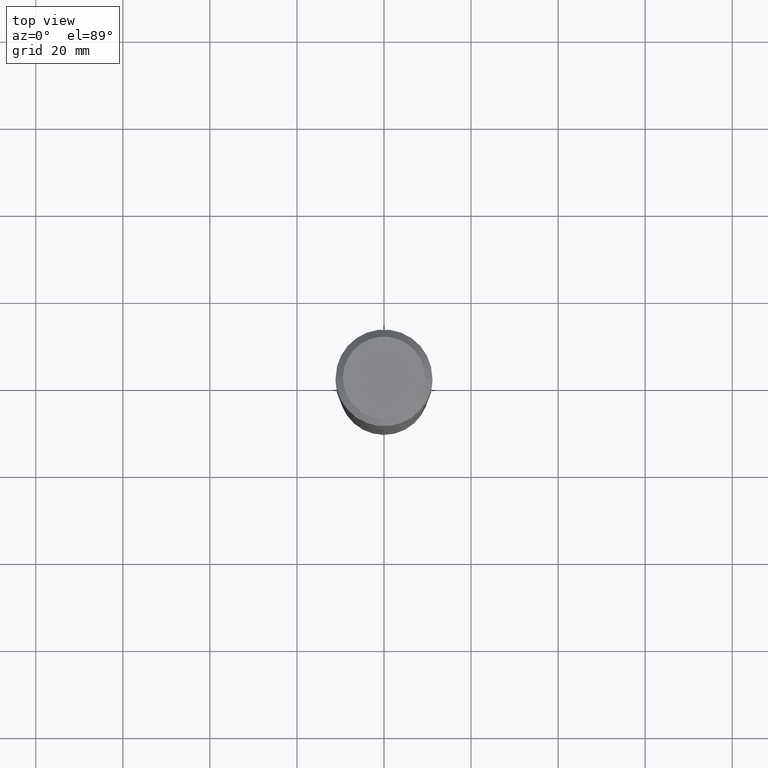
[diagram: clean part render]
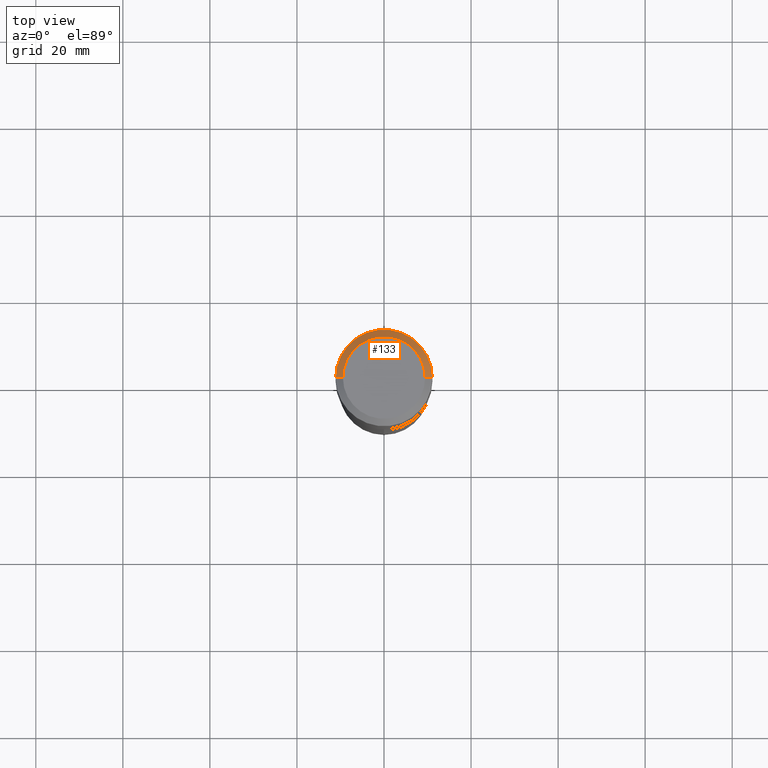
[diagram: same view with one face highlighted and labeled with its STEP entity id]
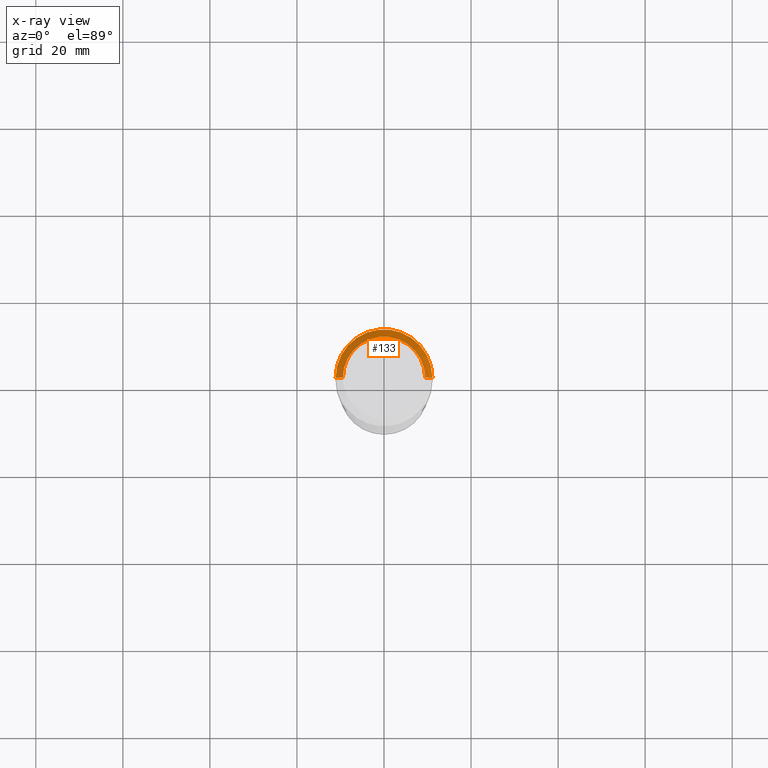
[diagram: x-ray of the same camera — body ghosted, the highlighted face saturated]
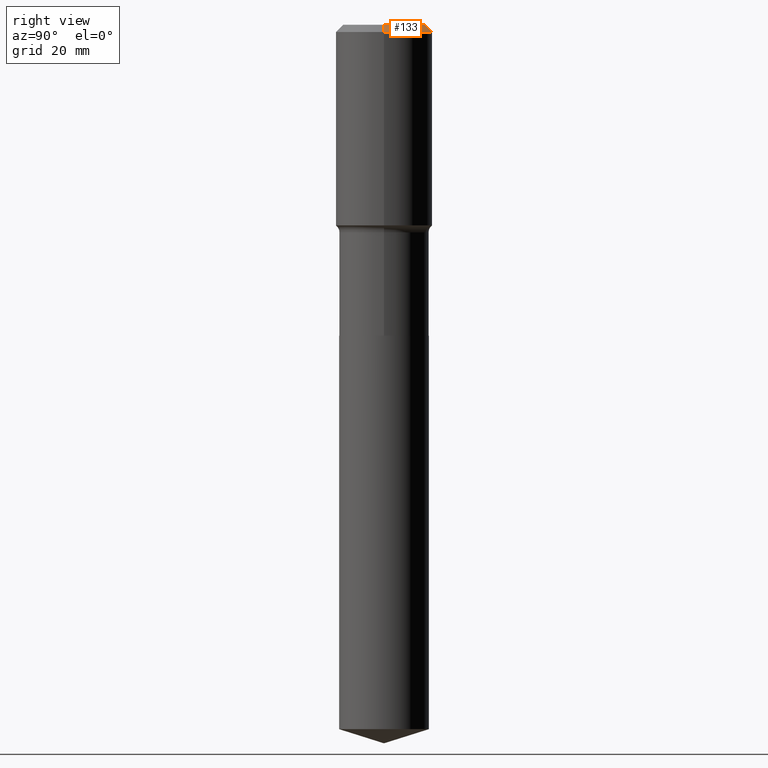
[diagram: same view with one face highlighted and labeled with its STEP entity id]
A machine part, top view. The second image highlights one B-rep face of the part: STEP entity #133.
The next image is the same camera in x-ray: the body ghosted, the highlighted face saturated — about 0% of this face is hidden behind the body in this view.
A second angle (right view) of the same face is appended — the face is thin or edge-on in the first view.
In plain terms, the highlighted conical surface has half-angle 45 deg.
Its self-contained STEP definition (entity closure, byte-faithful):
#2 = DIRECTION ( 'NONE',  ( -1.000000000000000000, 6.982962677686266711E-15, 0.000000000000000000 ) ) ;
#13 = CARTESIAN_POINT ( 'NONE',  ( -0.4375000000000000000, 2.825917708626158890E-15, -0.06562500000000040523 ) ) ;
#16 = EDGE_CURVE ( 'NONE', #418, #317, #36, .T. ) ;
#23 = VERTEX_POINT ( 'NONE', #227 ) ;
#36 = CIRCLE ( 'NONE', #152, 0.4375000000000000000 ) ;
#66 = ORIENTED_EDGE ( 'NONE', *, *, #344, .T. ) ;
#67 = CARTESIAN_POINT ( 'NONE',  ( 0.4375000000000000000, -3.284174634349324087E-15, -0.06562500000000040523 ) ) ;
#95 = FACE_OUTER_BOUND ( 'NONE', #374, .T. ) ;
#102 = CARTESIAN_POINT ( 'NONE',  ( -4.773019151292988154E-46, 6.814606366898299729E-32, 1.951780836141093704E-17 ) ) ;
#108 = CARTESIAN_POINT ( 'NONE',  ( -0.4375000000000000000, -1.756156852830166883E-16, -0.06562500000000040523 ) ) ;
#112 = CARTESIAN_POINT ( 'NONE',  ( 1.604838904059005561E-30, -2.291284628615828451E-16, -0.06562500000000040523 ) ) ;
#132 = ORIENTED_EDGE ( 'NONE', *, *, #16, .T. ) ;
#133 = ADVANCED_FACE ( 'NONE', ( #95 ), #348, .T. ) ;
#147 = CIRCLE ( 'NONE', #276, 0.3718749999999999556 ) ;
#148 = CARTESIAN_POINT ( 'NONE',  ( 0.3718749999999999556, -2.890922014903957840E-15, 1.951780836143012547E-17 ) ) ;
#152 = AXIS2_PLACEMENT_3D ( 'NONE', #112, #422, #303 ) ;
#167 = CARTESIAN_POINT ( 'NONE',  ( 1.604838904059005561E-30, -2.291284628615828451E-16, -0.06562500000000040523 ) ) ;
#179 = DIRECTION ( 'NONE',  ( -0.7071067811865453523, 2.468850131082234184E-15, -0.7071067811865496822 ) ) ;
#180 = DIRECTION ( 'NONE',  ( -2.445468806185136597E-29, 3.491481338843145583E-15, 1.000000000000000000 ) ) ;
#199 = VECTOR ( 'NONE', #284, 39.37007874015748143 ) ;
#207 = AXIS2_PLACEMENT_3D ( 'NONE', #167, #281, #2 ) ;
#227 = CARTESIAN_POINT ( 'NONE',  ( -0.3718749999999999556, 2.711353477195369464E-15, 1.951780836139237724E-17 ) ) ;
#276 = AXIS2_PLACEMENT_3D ( 'NONE', #102, #180, #356 ) ;
#281 = DIRECTION ( 'NONE',  ( 2.445468806185136597E-29, -3.491481338843145583E-15, -1.000000000000000000 ) ) ;
#284 = DIRECTION ( 'NONE',  ( 0.7071067811865453523, -7.319954787623248157E-15, -0.7071067811865496822 ) ) ;
#287 = CARTESIAN_POINT ( 'NONE',  ( 0.4375000000000000000, -3.230596336886627460E-15, -0.06562500000000040523 ) ) ;
#290 = LINE ( 'NONE', #287, #199 ) ;
#303 = DIRECTION ( 'NONE',  ( 1.000000000000000000, -6.982962677686266711E-15, 0.000000000000000000 ) ) ;
#317 = VERTEX_POINT ( 'NONE', #108 ) ;
#325 = VECTOR ( 'NONE', #179, 39.37007874015748143 ) ;
#327 = EDGE_CURVE ( 'NONE', #23, #317, #444, .T. ) ;
#329 = ORIENTED_EDGE ( 'NONE', *, *, #327, .F. ) ;
#331 = ORIENTED_EDGE ( 'NONE', *, *, #338, .F. ) ;
#338 = EDGE_CURVE ( 'NONE', #446, #23, #147, .T. ) ;
#344 = EDGE_CURVE ( 'NONE', #446, #418, #290, .T. ) ;
#348 = CONICAL_SURFACE ( 'NONE', #207, 0.4375000000000000000, 0.7853981633974452814 ) ;
#356 = DIRECTION ( 'NONE',  ( 1.000000000000000000, -6.982962677686267499E-15, 4.876184966057910179E-29 ) ) ;
#374 = EDGE_LOOP ( 'NONE', ( #331, #66, #132, #329 ) ) ;
#418 = VERTEX_POINT ( 'NONE', #67 ) ;
#422 = DIRECTION ( 'NONE',  ( -2.445468806185136597E-29, 3.491481338843145583E-15, 1.000000000000000000 ) ) ;
#444 = LINE ( 'NONE', #13, #325 ) ;
#446 = VERTEX_POINT ( 'NONE', #148 ) ;